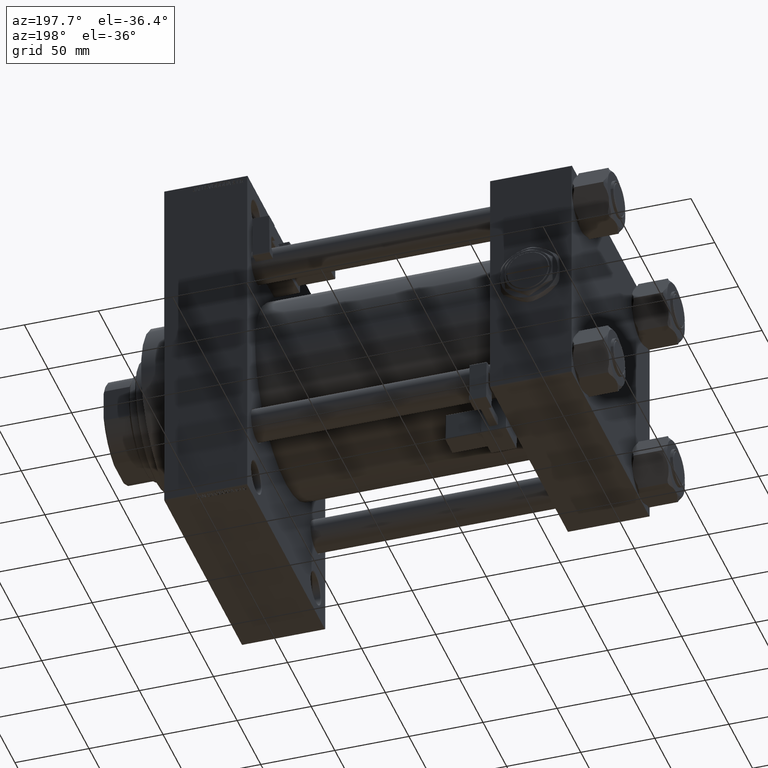
[diagram: clean part render]
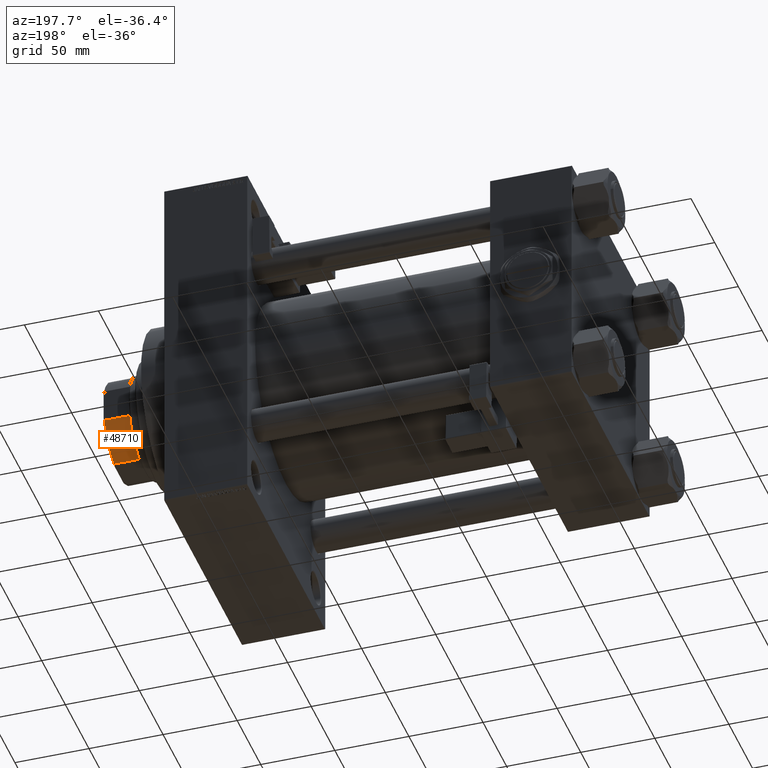
[diagram: same view with one face highlighted and labeled with its STEP entity id]
A machine part, auxiliary view. The second image highlights one B-rep face of the part: STEP entity #48710.
In plain terms, the highlighted cylindrical surface (partial cylindrical patch) has radius 34 mm, axis along (1, 0, 0).
Its self-contained STEP definition (entity closure, byte-faithful):
#1051 = CIRCLE ( 'NONE', #28560, 34.00000000000000000 ) ;
#1619 = EDGE_CURVE ( 'NONE', #12551, #28358, #8198, .T. ) ;
#1905 = CARTESIAN_POINT ( 'NONE',  ( -31.99999999999998579, 11.48912529307609987, 259.5000000000000568 ) ) ;
#3002 = DIRECTION ( 'NONE',  ( -1.000000000000000000, 1.776356839400250465E-15, 0.000000000000000000 ) ) ;
#3128 = VERTEX_POINT ( 'NONE', #46860 ) ;
#3307 = AXIS2_PLACEMENT_3D ( 'NONE', #50750, #6926, #3002 ) ;
#5038 = ORIENTED_EDGE ( 'NONE', *, *, #35969, .T. ) ;
#6926 = DIRECTION ( 'NONE',  ( -0.000000000000000000, -0.000000000000000000, 1.000000000000000000 ) ) ;
#8198 = LINE ( 'NONE', #36131, #42249 ) ;
#10322 = EDGE_CURVE ( 'NONE', #12551, #40549, #39145, .T. ) ;
#11809 = ORIENTED_EDGE ( 'NONE', *, *, #1619, .F. ) ;
#12551 = VERTEX_POINT ( 'NONE', #28461 ) ;
#13761 = DIRECTION ( 'NONE',  ( 1.000000000000000000, 0.000000000000000000, 0.000000000000000000 ) ) ;
#14911 = ORIENTED_EDGE ( 'NONE', *, *, #20513, .T. ) ;
#15136 = DIRECTION ( 'NONE',  ( -0.000000000000000000, -0.000000000000000000, 1.000000000000000000 ) ) ;
#15390 = CARTESIAN_POINT ( 'NONE',  ( -31.99999999999998579, 11.48912529307610164, -0.0009999999999732445133 ) ) ;
#17163 = CARTESIAN_POINT ( 'NONE',  ( 0.000000000000000000, 0.000000000000000000, 276.4999999999999432 ) ) ;
#17683 = CYLINDRICAL_SURFACE ( 'NONE', #32122, 34.00000000000000000 ) ;
#17986 = VECTOR ( 'NONE', #15136, 1000.000000000000000 ) ;
#20258 = CARTESIAN_POINT ( 'NONE',  ( -11.48912529307606256, 32.00000000000000000, 276.4999999999999432 ) ) ;
#20513 = EDGE_CURVE ( 'NONE', #3128, #28358, #1051, .T. ) ;
#27434 = LINE ( 'NONE', #15390, #17986 ) ;
#28358 = VERTEX_POINT ( 'NONE', #20258 ) ;
#28461 = CARTESIAN_POINT ( 'NONE',  ( -11.48912529307606079, 32.00000000000000000, 259.5000000000000568 ) ) ;
#28560 = AXIS2_PLACEMENT_3D ( 'NONE', #17163, #33348, #41161 ) ;
#29696 = FACE_OUTER_BOUND ( 'NONE', #43432, .T. ) ;
#31695 = DIRECTION ( 'NONE',  ( -0.000000000000000000, -0.000000000000000000, 1.000000000000000000 ) ) ;
#32122 = AXIS2_PLACEMENT_3D ( 'NONE', #49502, #49251, #13761 ) ;
#33348 = DIRECTION ( 'NONE',  ( -0.000000000000000000, -0.000000000000000000, -1.000000000000000000 ) ) ;
#33783 = ORIENTED_EDGE ( 'NONE', *, *, #10322, .T. ) ;
#35969 = EDGE_CURVE ( 'NONE', #40549, #3128, #27434, .T. ) ;
#36131 = CARTESIAN_POINT ( 'NONE',  ( -11.48912529307606256, 32.00000000000000000, -0.0009999999999732445133 ) ) ;
#39145 = CIRCLE ( 'NONE', #3307, 34.00000000000000000 ) ;
#40549 = VERTEX_POINT ( 'NONE', #1905 ) ;
#41161 = DIRECTION ( 'NONE',  ( 1.000000000000000000, -8.881784197001252323E-16, 0.000000000000000000 ) ) ;
#42249 = VECTOR ( 'NONE', #31695, 1000.000000000000000 ) ;
#43432 = EDGE_LOOP ( 'NONE', ( #5038, #14911, #11809, #33783 ) ) ;
#46860 = CARTESIAN_POINT ( 'NONE',  ( -31.99999999999998579, 11.48912529307610164, 276.4999999999999432 ) ) ;
#48710 = ADVANCED_FACE ( 'NONE', ( #29696 ), #17683, .T. ) ;
#49251 = DIRECTION ( 'NONE',  ( -0.000000000000000000, -0.000000000000000000, 1.000000000000000000 ) ) ;
#49502 = CARTESIAN_POINT ( 'NONE',  ( 0.000000000000000000, 0.000000000000000000, -0.0009999999999732445133 ) ) ;
#50750 = CARTESIAN_POINT ( 'NONE',  ( 0.000000000000000000, 0.000000000000000000, 259.5000000000000568 ) ) ;